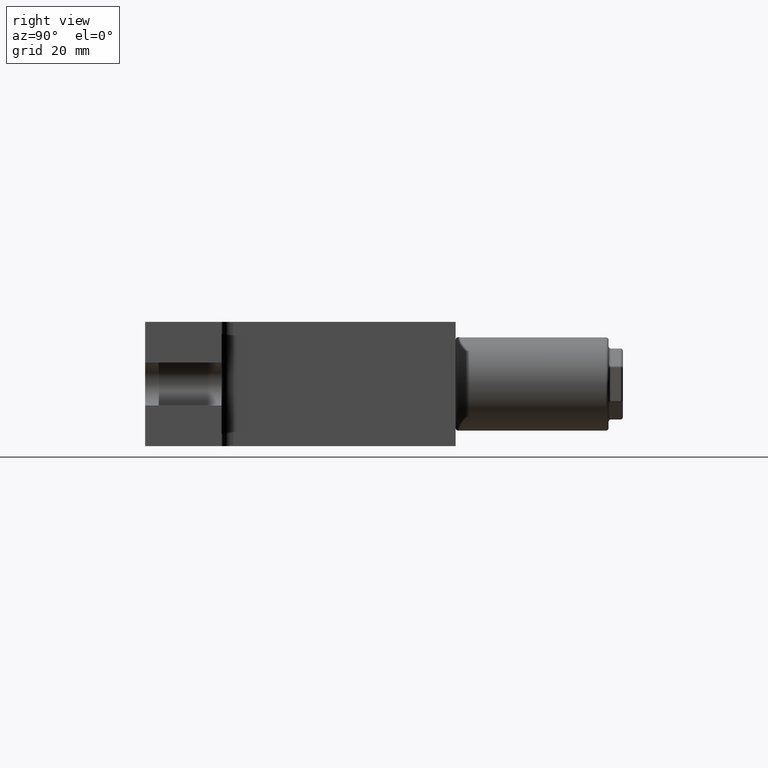
[diagram: clean part render]
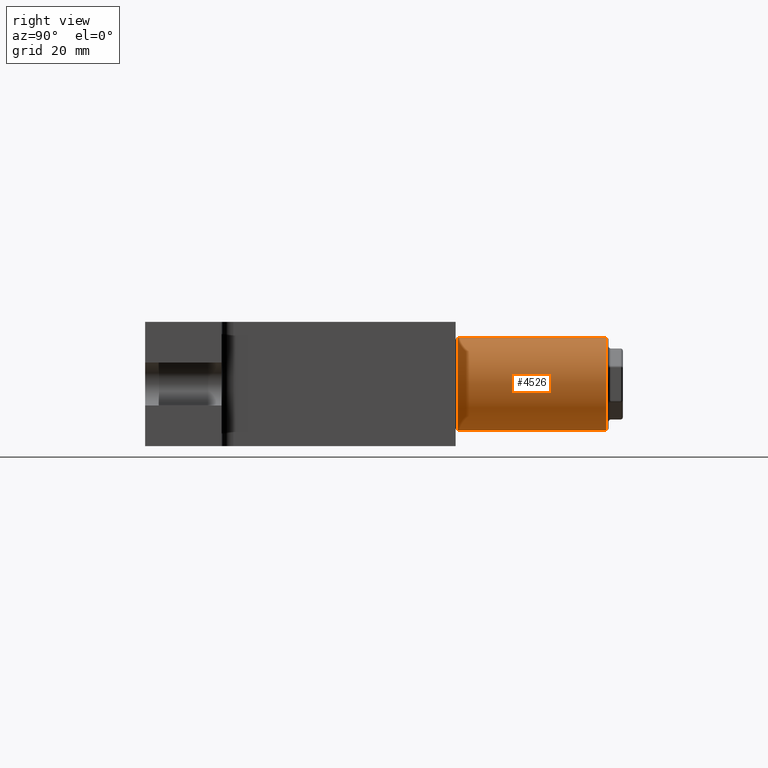
[diagram: same view with one face highlighted and labeled with its STEP entity id]
A machine part, right view. The second image highlights one B-rep face of the part: STEP entity #4526.
In plain terms, the highlighted cylindrical surface (partial cylindrical patch) has radius 9.75 mm, axis along (-0, -1, -0).
Its self-contained STEP definition (entity closure, byte-faithful):
#110 = ORIENTED_EDGE ( 'NONE', *, *, #3004, .T. ) ;
#115 = CARTESIAN_POINT ( 'NONE',  ( -13.00000000000000500, 64.00000000000000000, -9.750000000000001800 ) ) ;
#120 = CARTESIAN_POINT ( 'NONE',  ( -13.00000000000000000, 50.50000000000000000, -9.750000000000000000 ) ) ;
#305 = EDGE_CURVE ( 'NONE', #6891, #5766, #2741, .T. ) ;
#411 = CARTESIAN_POINT ( 'NONE',  ( -12.99999999999999800, 64.00000000000000000, 9.749999999999998200 ) ) ;
#412 = LINE ( 'NONE', #1562, #6319 ) ;
#439 = VECTOR ( 'NONE', #1186, 1000.000000000000000 ) ;
#442 = CARTESIAN_POINT ( 'NONE',  ( -12.99999999999999800, 64.50000000000000000, 9.749999999999998200 ) ) ;
#543 = AXIS2_PLACEMENT_3D ( 'NONE', #2458, #6777, #5222 ) ;
#548 = CARTESIAN_POINT ( 'NONE',  ( -13.00000000000000000, 64.50000000000000000, 9.750000000000000000 ) ) ;
#653 = DIRECTION ( 'NONE',  ( -5.959270968386779200E-017, -1.000000000000000000, -1.089523766022739900E-016 ) ) ;
#927 = CARTESIAN_POINT ( 'NONE',  ( -13.00000000000000000, 64.00000000000000000, -9.260952011193280300E-016 ) ) ;
#1022 = DIRECTION ( 'NONE',  ( -5.959270968386779200E-017, -1.000000000000000000, -1.089523766022739900E-016 ) ) ;
#1043 = VERTEX_POINT ( 'NONE', #5843 ) ;
#1104 = CARTESIAN_POINT ( 'NONE',  ( -13.00000000000000000, 64.50000000000000000, -9.750000000000000000 ) ) ;
#1141 = EDGE_CURVE ( 'NONE', #1043, #6187, #2468, .T. ) ;
#1186 = DIRECTION ( 'NONE',  ( -5.959270968386779200E-017, -1.000000000000000000, -1.089523766022739900E-016 ) ) ;
#1191 = VECTOR ( 'NONE', #5456, 1000.000000000000000 ) ;
#1221 = VERTEX_POINT ( 'NONE', #2293 ) ;
#1267 = CARTESIAN_POINT ( 'NONE',  ( -13.00000000000000000, 56.50000000000000000, -9.750000000000000000 ) ) ;
#1272 = DIRECTION ( 'NONE',  ( -1.779203565104417600E-016, 0.0000000000000000000, -1.000000000000000000 ) ) ;
#1300 = DIRECTION ( 'NONE',  ( -5.959270968386779200E-017, -1.000000000000000000, -1.089523766022739900E-016 ) ) ;
#1327 = VERTEX_POINT ( 'NONE', #115 ) ;
#1339 = VERTEX_POINT ( 'NONE', #6056 ) ;
#1424 = EDGE_CURVE ( 'NONE', #3468, #5306, #3815, .T. ) ;
#1451 = LINE ( 'NONE', #3050, #5746 ) ;
#1485 = ORIENTED_EDGE ( 'NONE', *, *, #5768, .T. ) ;
#1506 = EDGE_CURVE ( 'NONE', #6092, #4352, #6686, .T. ) ;
#1547 = LINE ( 'NONE', #6390, #5679 ) ;
#1562 = CARTESIAN_POINT ( 'NONE',  ( -13.00000000000000400, 64.50000000000000000, -9.750000000000001800 ) ) ;
#1566 = DIRECTION ( 'NONE',  ( -1.779203565104417600E-016, 0.0000000000000000000, -1.000000000000000000 ) ) ;
#1613 = EDGE_CURVE ( 'NONE', #1339, #6891, #1451, .T. ) ;
#1692 = LINE ( 'NONE', #4469, #2703 ) ;
#1840 = VECTOR ( 'NONE', #3016, 1000.000000000000000 ) ;
#1899 = CARTESIAN_POINT ( 'NONE',  ( -13.00000000000000000, 42.50000000000000000, 9.750000000000000000 ) ) ;
#1941 = DIRECTION ( 'NONE',  ( -5.959270968386779200E-017, -1.000000000000000000, -1.089523766022739900E-016 ) ) ;
#2002 = ORIENTED_EDGE ( 'NONE', *, *, #305, .T. ) ;
#2132 = ORIENTED_EDGE ( 'NONE', *, *, #1141, .F. ) ;
#2185 = LINE ( 'NONE', #3893, #1191 ) ;
#2266 = VECTOR ( 'NONE', #6677, 1000.000000000000000 ) ;
#2293 = CARTESIAN_POINT ( 'NONE',  ( -13.00000000000000000, 40.50000000000000000, -9.750000000000000000 ) ) ;
#2300 = EDGE_CURVE ( 'NONE', #1221, #5766, #412, .T. ) ;
#2419 = AXIS2_PLACEMENT_3D ( 'NONE', #2921, #5650, #1272 ) ;
#2458 = CARTESIAN_POINT ( 'NONE',  ( -13.00000000000000000, 64.50000000000000000, -9.260952011193280300E-016 ) ) ;
#2468 = LINE ( 'NONE', #548, #2555 ) ;
#2555 = VECTOR ( 'NONE', #3285, 1000.000000000000000 ) ;
#2609 = CARTESIAN_POINT ( 'NONE',  ( -13.00000000000000000, 42.50000000000000000, -9.750000000000000000 ) ) ;
#2641 = DIRECTION ( 'NONE',  ( -5.959270968386779200E-017, -1.000000000000000000, -1.089523766022739900E-016 ) ) ;
#2703 = VECTOR ( 'NONE', #3905, 1000.000000000000000 ) ;
#2741 = CIRCLE ( 'NONE', #2419, 9.750000000000000000 ) ;
#2800 = EDGE_CURVE ( 'NONE', #5621, #5306, #1692, .T. ) ;
#2891 = EDGE_CURVE ( 'NONE', #1327, #3468, #4808, .T. ) ;
#2899 = DIRECTION ( 'NONE',  ( -5.959270968386779200E-017, -1.000000000000000000, -1.089523766022739900E-016 ) ) ;
#2916 = CARTESIAN_POINT ( 'NONE',  ( -13.00000000000000400, 64.50000000000000000, -9.750000000000001800 ) ) ;
#2921 = CARTESIAN_POINT ( 'NONE',  ( -13.00000000000000000, 33.00000000000000000, -1.480388300893379800E-014 ) ) ;
#2985 = VECTOR ( 'NONE', #3204, 1000.000000000000000 ) ;
#3004 = EDGE_CURVE ( 'NONE', #1221, #5532, #2185, .T. ) ;
#3016 = DIRECTION ( 'NONE',  ( -5.959270968386779200E-017, -1.000000000000000000, -1.089523766022739900E-016 ) ) ;
#3050 = CARTESIAN_POINT ( 'NONE',  ( -12.99999999999999800, 64.50000000000000000, 9.749999999999998200 ) ) ;
#3179 = ORIENTED_EDGE ( 'NONE', *, *, #2891, .T. ) ;
#3204 = DIRECTION ( 'NONE',  ( -5.959270968386779200E-017, -1.000000000000000000, -1.089523766022739900E-016 ) ) ;
#3274 = CARTESIAN_POINT ( 'NONE',  ( -12.99999999999999800, 33.00000000000000000, 9.749999999999984000 ) ) ;
#3285 = DIRECTION ( 'NONE',  ( 5.959270968386779200E-017, 1.000000000000000000, 1.089523766022739900E-016 ) ) ;
#3305 = ORIENTED_EDGE ( 'NONE', *, *, #5530, .T. ) ;
#3334 = VECTOR ( 'NONE', #1022, 1000.000000000000000 ) ;
#3468 = VERTEX_POINT ( 'NONE', #411 ) ;
#3550 = CARTESIAN_POINT ( 'NONE',  ( -13.00000000000000000, 64.50000000000000000, -9.750000000000000000 ) ) ;
#3672 = CARTESIAN_POINT ( 'NONE',  ( -13.00000000000000000, 64.50000000000000000, 9.750000000000000000 ) ) ;
#3815 = LINE ( 'NONE', #4979, #6848 ) ;
#3893 = CARTESIAN_POINT ( 'NONE',  ( -13.00000000000000000, 64.50000000000000000, -9.750000000000000000 ) ) ;
#3905 = DIRECTION ( 'NONE',  ( 5.959270968386779200E-017, 1.000000000000000000, 1.089523766022739900E-016 ) ) ;
#3908 = EDGE_CURVE ( 'NONE', #1043, #5698, #4028, .T. ) ;
#3912 = ORIENTED_EDGE ( 'NONE', *, *, #5582, .F. ) ;
#4028 = LINE ( 'NONE', #4052, #1840 ) ;
#4052 = CARTESIAN_POINT ( 'NONE',  ( -12.99999999999999800, 64.50000000000000000, 9.749999999999998200 ) ) ;
#4162 = LINE ( 'NONE', #3672, #2985 ) ;
#4352 = VERTEX_POINT ( 'NONE', #5061 ) ;
#4469 = CARTESIAN_POINT ( 'NONE',  ( -13.00000000000000000, 64.50000000000000000, 9.750000000000000000 ) ) ;
#4526 = ADVANCED_FACE ( 'NONE', ( #5386 ), #5966, .T. ) ;
#4585 = ORIENTED_EDGE ( 'NONE', *, *, #6240, .F. ) ;
#4687 = VERTEX_POINT ( 'NONE', #4890 ) ;
#4697 = ORIENTED_EDGE ( 'NONE', *, *, #4896, .F. ) ;
#4747 = LINE ( 'NONE', #442, #3334 ) ;
#4774 = ORIENTED_EDGE ( 'NONE', *, *, #1506, .F. ) ;
#4788 = ORIENTED_EDGE ( 'NONE', *, *, #1613, .T. ) ;
#4789 = CARTESIAN_POINT ( 'NONE',  ( -13.00000000000000500, 33.00000000000000000, -9.750000000000016000 ) ) ;
#4808 = CIRCLE ( 'NONE', #6806, 9.750000000000000000 ) ;
#4809 = DIRECTION ( 'NONE',  ( -5.959270968386779200E-017, -1.000000000000000000, -1.089523766022739900E-016 ) ) ;
#4890 = CARTESIAN_POINT ( 'NONE',  ( -13.00000000000000000, 58.50000000000000000, -9.750000000000000000 ) ) ;
#4896 = EDGE_CURVE ( 'NONE', #1327, #4687, #6561, .T. ) ;
#4921 = EDGE_LOOP ( 'NONE', ( #4697, #3179, #5498, #5662, #1485, #2132, #5585, #3305, #4788, #2002, #6267, #110, #4585, #4774, #3912, #5603 ) ) ;
#4979 = CARTESIAN_POINT ( 'NONE',  ( -12.99999999999999800, 64.50000000000000000, 9.749999999999998200 ) ) ;
#5061 = CARTESIAN_POINT ( 'NONE',  ( -13.00000000000000000, 48.50000000000000000, -9.750000000000000000 ) ) ;
#5080 = VECTOR ( 'NONE', #1300, 1000.000000000000000 ) ;
#5222 = DIRECTION ( 'NONE',  ( 1.779203565104417600E-016, 0.0000000000000000000, 1.000000000000000000 ) ) ;
#5306 = VERTEX_POINT ( 'NONE', #6584 ) ;
#5386 = FACE_OUTER_BOUND ( 'NONE', #4921, .T. ) ;
#5456 = DIRECTION ( 'NONE',  ( 5.959270968386779200E-017, 1.000000000000000000, 1.089523766022739900E-016 ) ) ;
#5498 = ORIENTED_EDGE ( 'NONE', *, *, #1424, .T. ) ;
#5530 = EDGE_CURVE ( 'NONE', #5698, #1339, #4162, .T. ) ;
#5532 = VERTEX_POINT ( 'NONE', #2609 ) ;
#5582 = EDGE_CURVE ( 'NONE', #5973, #6092, #1547, .T. ) ;
#5585 = ORIENTED_EDGE ( 'NONE', *, *, #3908, .T. ) ;
#5603 = ORIENTED_EDGE ( 'NONE', *, *, #6392, .F. ) ;
#5621 = VERTEX_POINT ( 'NONE', #6682 ) ;
#5650 = DIRECTION ( 'NONE',  ( 5.959270968386779200E-017, 1.000000000000000000, 1.089523766022739900E-016 ) ) ;
#5662 = ORIENTED_EDGE ( 'NONE', *, *, #2800, .F. ) ;
#5679 = VECTOR ( 'NONE', #653, 1000.000000000000000 ) ;
#5698 = VERTEX_POINT ( 'NONE', #1899 ) ;
#5746 = VECTOR ( 'NONE', #1941, 1000.000000000000000 ) ;
#5766 = VERTEX_POINT ( 'NONE', #4789 ) ;
#5768 = EDGE_CURVE ( 'NONE', #5621, #6187, #4747, .T. ) ;
#5843 = CARTESIAN_POINT ( 'NONE',  ( -13.00000000000000000, 48.50000000000000000, 9.750000000000000000 ) ) ;
#5966 = CYLINDRICAL_SURFACE ( 'NONE', #543, 9.750000000000000000 ) ;
#5973 = VERTEX_POINT ( 'NONE', #1267 ) ;
#6021 = VECTOR ( 'NONE', #6998, 1000.000000000000000 ) ;
#6056 = CARTESIAN_POINT ( 'NONE',  ( -13.00000000000000000, 40.50000000000000000, 9.750000000000000000 ) ) ;
#6092 = VERTEX_POINT ( 'NONE', #120 ) ;
#6100 = LINE ( 'NONE', #6258, #6021 ) ;
#6187 = VERTEX_POINT ( 'NONE', #6884 ) ;
#6240 = EDGE_CURVE ( 'NONE', #4352, #5532, #6100, .T. ) ;
#6258 = CARTESIAN_POINT ( 'NONE',  ( -13.00000000000000400, 64.50000000000000000, -9.750000000000001800 ) ) ;
#6267 = ORIENTED_EDGE ( 'NONE', *, *, #2300, .F. ) ;
#6319 = VECTOR ( 'NONE', #2641, 1000.000000000000000 ) ;
#6342 = LINE ( 'NONE', #1104, #439 ) ;
#6390 = CARTESIAN_POINT ( 'NONE',  ( -13.00000000000000400, 64.50000000000000000, -9.750000000000001800 ) ) ;
#6392 = EDGE_CURVE ( 'NONE', #4687, #5973, #6342, .T. ) ;
#6561 = LINE ( 'NONE', #2916, #2266 ) ;
#6584 = CARTESIAN_POINT ( 'NONE',  ( -13.00000000000000000, 58.50000000000000000, 9.750000000000000000 ) ) ;
#6677 = DIRECTION ( 'NONE',  ( -5.959270968386779200E-017, -1.000000000000000000, -1.089523766022739900E-016 ) ) ;
#6682 = CARTESIAN_POINT ( 'NONE',  ( -13.00000000000000000, 56.50000000000000000, 9.750000000000000000 ) ) ;
#6686 = LINE ( 'NONE', #3550, #5080 ) ;
#6777 = DIRECTION ( 'NONE',  ( -5.959270968386779200E-017, -1.000000000000000000, -1.089523766022739900E-016 ) ) ;
#6806 = AXIS2_PLACEMENT_3D ( 'NONE', #927, #4809, #1566 ) ;
#6848 = VECTOR ( 'NONE', #2899, 1000.000000000000000 ) ;
#6884 = CARTESIAN_POINT ( 'NONE',  ( -13.00000000000000000, 50.50000000000000000, 9.750000000000000000 ) ) ;
#6891 = VERTEX_POINT ( 'NONE', #3274 ) ;
#6998 = DIRECTION ( 'NONE',  ( -5.959270968386779200E-017, -1.000000000000000000, -1.089523766022739900E-016 ) ) ;